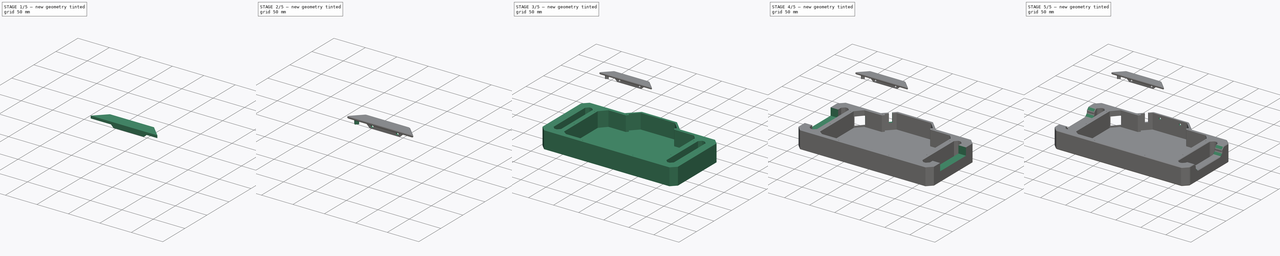
[diagram: build sequence overview — one tinted view per stage of 5, left to right]
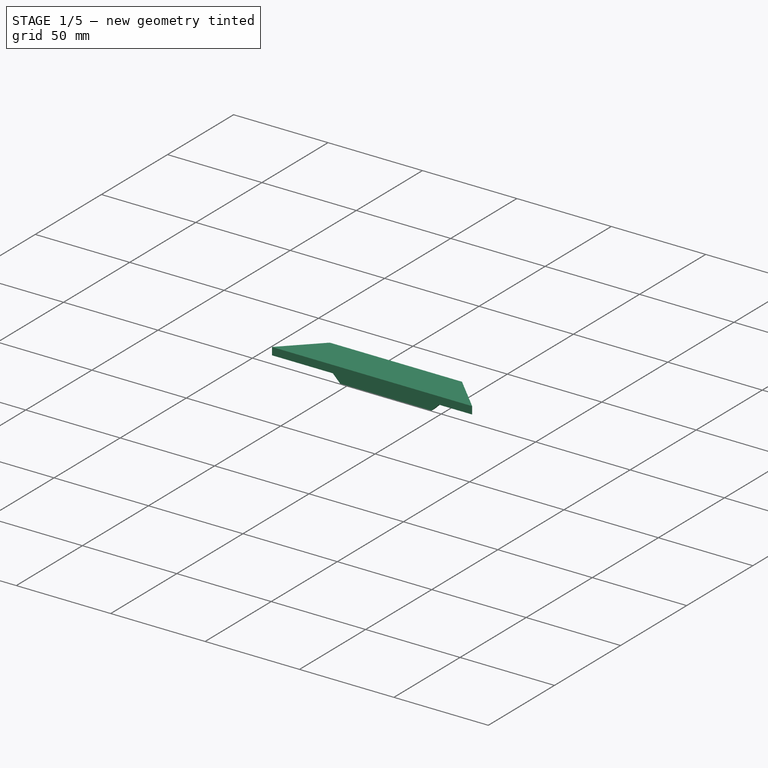
[diagram: stage 1 of 5 — iso view after this stage's code; geometry added in this stage tinted green]
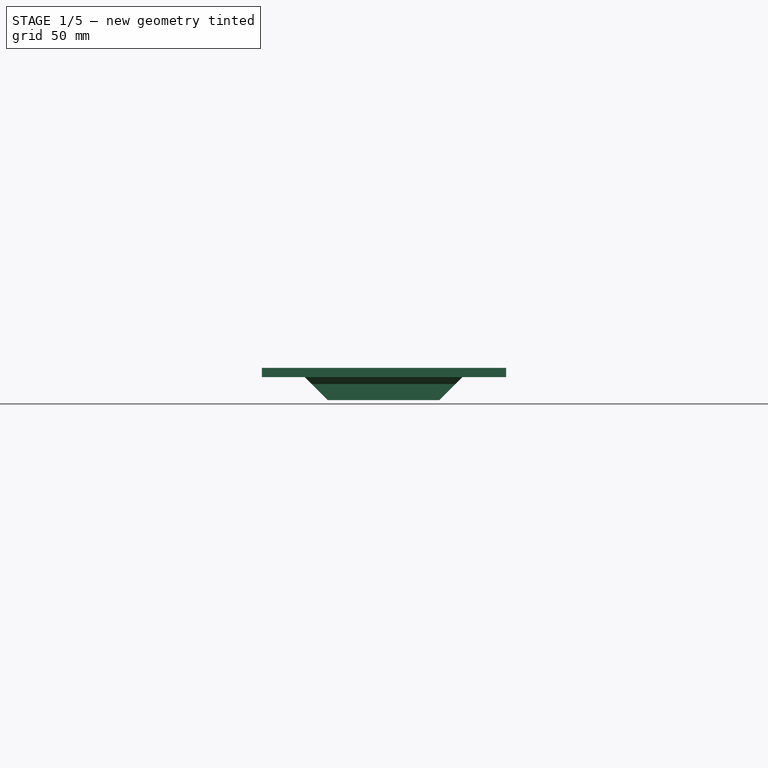
[diagram: stage 1 of 5 — front view after this stage's code; geometry added in this stage tinted green]
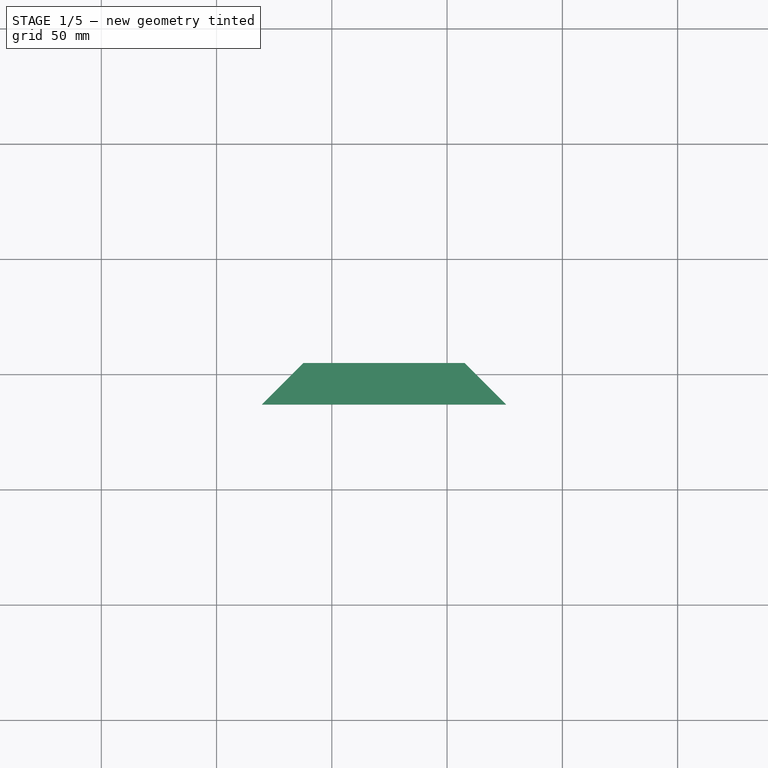
[diagram: stage 1 of 5 — top view after this stage's code; geometry added in this stage tinted green]
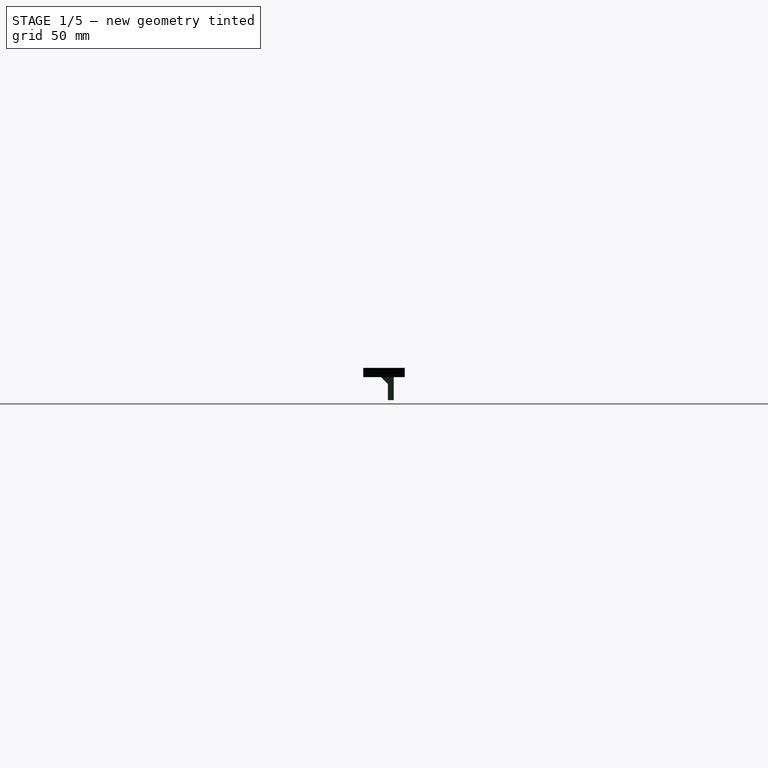
[diagram: stage 1 of 5 — right view after this stage's code; geometry added in this stage tinted green]
FCSTD DOCUMENT  (FreeCAD 0.19R)
Label: Screen_BackPanel
License: All rights reserved
LicenseURL: http://en.wikipedia.org/wiki/All_rights_reserved
objects: Sketcher::SketchObject×13, PartDesign::Pocket×9, PartDesign::Plane×8, PartDesign::Chamfer×7, PartDesign::Pad×4, PartDesign::Body×2, App::DocumentObjectGroup×1, PartDesign::ShapeBinder×1
note: 64 computed .brp shape members not serialized (recipe doc carries the construction recipe); baked Part::Feature solids carry a one-line shape summary decoded from their .brp

FEATURE [PartDesign::Plane] DatumPlane004
  AttachmentOffset = pos=(0,0,-170) rot=(0,0,1;0rad)
  Length = 332.392
  MapMode = 5
  Placement = pos=(0,170,3.77e-14) rot=(1,0,0;1.5708rad)
  ResizeMode = 0
  Support = -> [XZ_Plane]
  Width = 85.8528
FEATURE [PartDesign::ShapeBinder] CopyXY_Plane
  TraceSupport = false
FEATURE [PartDesign::Plane] DatumPlane005
  AttachmentOffset = pos=(0,0,34) rot=(0,0,1;0rad)
  Length = 138.799
  MapMode = 5
  Placement = pos=(0,0,34) rot=(0,0,1;0rad)
  ResizeMode = 0
  Support = -> [CopyXY_Plane]
  Width = 314.025
FEATURE [Sketcher::SketchObject] Sketch009
  FullyConstrained = false
  MapMode = 5
  Placement = pos=(0,0,34) rot=(0,0,1;0rad)
  Support = -> [DatumPlane005]
  sketch-geometry (4):
    g0: LineSegment StartX=-30.3678 StartY=236.811 StartZ=0 EndX=-12.3678 EndY=254.811 EndZ=0
    g1: LineSegment StartX=-12.3678 StartY=254.811 StartZ=0 EndX=57.6322 EndY=254.811 EndZ=0
    g2: LineSegment StartX=57.6322 StartY=254.811 StartZ=0 EndX=75.6322 EndY=236.811 EndZ=0
    g3: LineSegment StartX=75.6322 StartY=236.811 StartZ=0 EndX=-30.3678 EndY=236.811 EndZ=0
  constraints (10):
    c: Coincident(g0,g1)
    c: Coincident(g1,g2)
    c: Coincident(g2,g3)
    c: Coincident(g3,g0)
    c: Angle(g0,g2) = 1.5708
    c: Parallel(g1,g3)
    c: Horizontal(g1)
    c: DistanceX(g1,g1) = 70
    c: DistanceY(g2,g1) = 18
    c: Angle(g2) = -0.785398
FEATURE [Sketcher::SketchObject] Sketch010
  FullyConstrained = false
  MapMode = 5
  Placement = pos=(0,0,34) rot=(0,0,1;0rad)
  Support = -> [DatumPlane005]
  sketch-geometry (4):
    g0: LineSegment StartX=-19.2143 StartY=248.061 StartZ=0 EndX=-16.6308 EndY=245.478 EndZ=0
    g1: LineSegment StartX=-16.6308 StartY=245.478 StartZ=0 EndX=-20.7377 EndY=241.371 EndZ=0
    g2: LineSegment StartX=-20.7377 StartY=241.371 StartZ=0 EndX=-23.3212 EndY=243.954 EndZ=0
    g3: LineSegment StartX=-23.3212 StartY=243.954 StartZ=0 EndX=-19.2143 EndY=248.061 EndZ=0
  constraints (8):
    c: Coincident(g0,g1)
    c: Coincident(g1,g2)
    c: Coincident(g2,g3)
    c: Coincident(g3,g0)
    c: Parallel(g1,g3)
    c: Parallel(g0,g2)
    c: Angle(g3) = 0.785398
    c: Angle(g2) = 2.35619
FEATURE [Sketcher::SketchObject] Sketch012
  FullyConstrained = false
  MapMode = 5
  Placement = pos=(0,0,34) rot=(0,0,1;0rad)
  Support = -> [DatumPlane005]
  sketch-geometry (4):
    g0: LineSegment StartX=-11.7011 StartY=250.05 StartZ=0 EndX=56.6344 EndY=250.05 EndZ=0
    g1: LineSegment StartX=56.6344 StartY=250.05 StartZ=0 EndX=56.6344 EndY=247.469 EndZ=0
    g2: LineSegment StartX=56.6344 StartY=247.469 StartZ=0 EndX=-11.7011 EndY=247.469 EndZ=0
    g3: LineSegment StartX=-11.7011 StartY=247.469 StartZ=0 EndX=-11.7011 EndY=250.05 EndZ=0
  constraints (8):
    c: Coincident(g0,g1)
    c: Coincident(g1,g2)
    c: Coincident(g2,g3)
    c: Coincident(g3,g0)
    c: Horizontal(g0)
    c: Horizontal(g2)
    c: Vertical(g1)
    c: Vertical(g3)
FEATURE [PartDesign::Pad] Pad001
  Direction = (1,1,1)
  Length = 10
  Length2 = 100
  Placement = pos=(0,0,34) rot=(0,0,1;0rad)
  Profile = -> Sketch012
  Reversed = true
  Type = 0
FEATURE [PartDesign::Pad] Pad002
  BaseFeature = -> Pad001
  Direction = (1,1,1)
  Length = 4
  Length2 = 100
  Placement = pos=(0,0,34) rot=(0,0,1;0rad)
  Profile = -> Sketch009
  Type = 0
FEATURE [PartDesign::Chamfer] Chamfer001
  Angle = 45
  Base = -> Pad002 [Edge21,Edge24]
  BaseFeature = -> Pad002
  ChamferType = 0
  FlipDirection = false
  Placement = pos=(0,0,34) rot=(0,0,1;0rad)
  Size = 9.99
  Size2 = 1
  SupportTransform = false
FEATURE [PartDesign::Chamfer] Chamfer002
  Angle = 45
  Base = -> Chamfer001 [Edge17]
  BaseFeature = -> Chamfer001
  ChamferType = 0
  FlipDirection = false
  Placement = pos=(0,0,34) rot=(0,0,1;0rad)
  Size = 3
  Size2 = 1
  SupportTransform = false
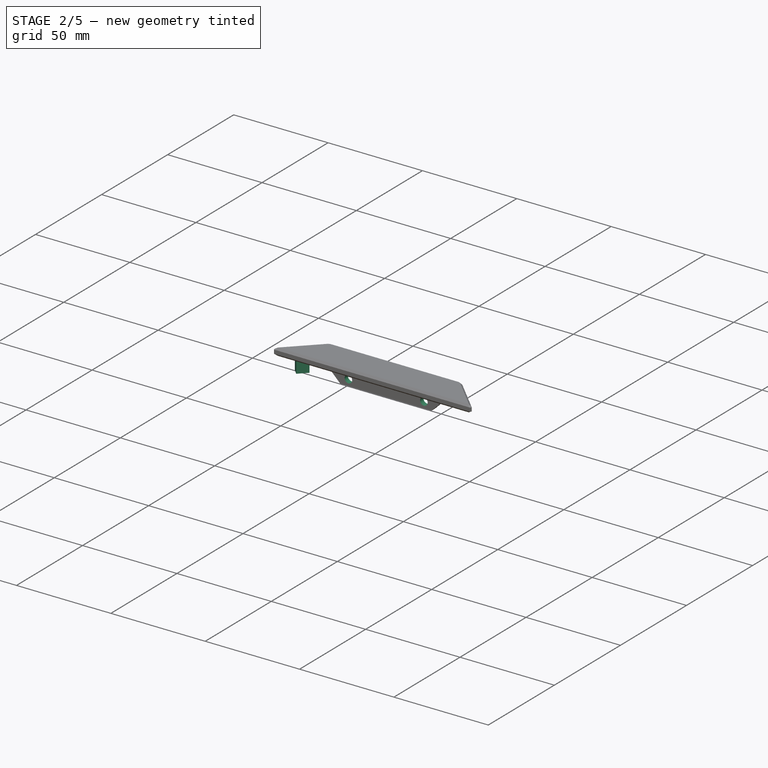
[diagram: stage 2 of 5 — iso view after this stage's code; geometry added in this stage tinted green]
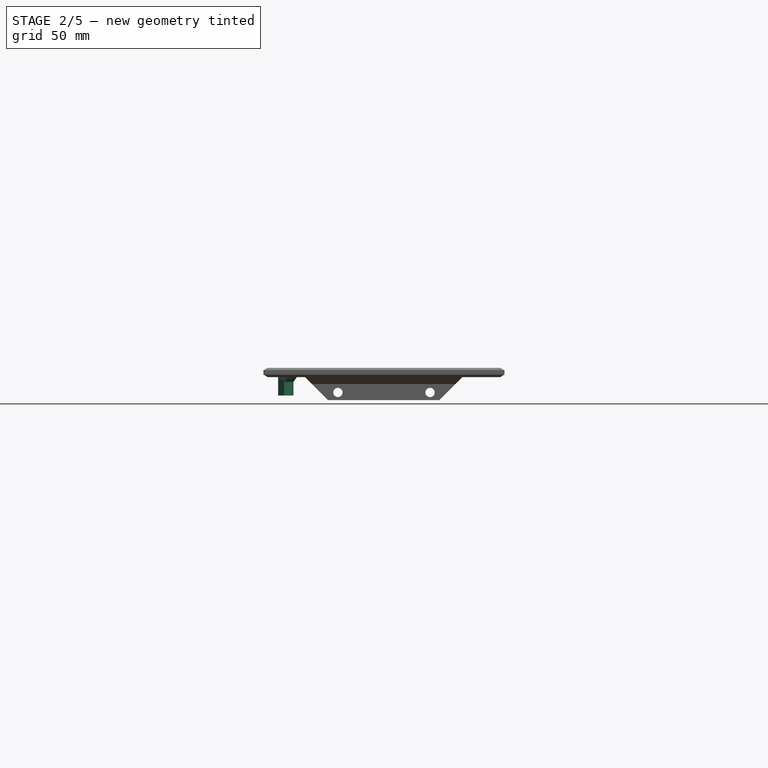
[diagram: stage 2 of 5 — front view after this stage's code; geometry added in this stage tinted green]
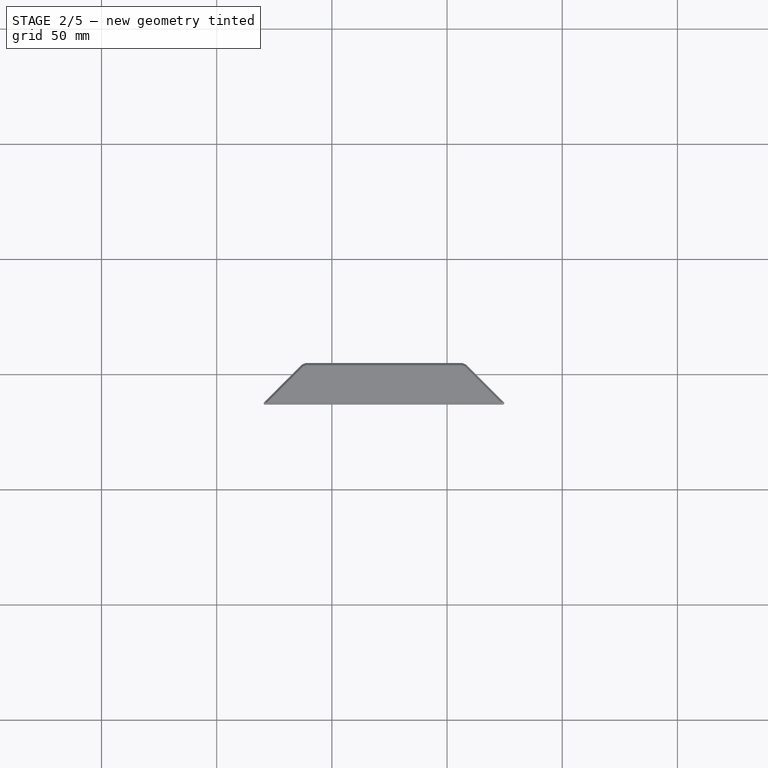
[diagram: stage 2 of 5 — top view after this stage's code; geometry added in this stage tinted green]
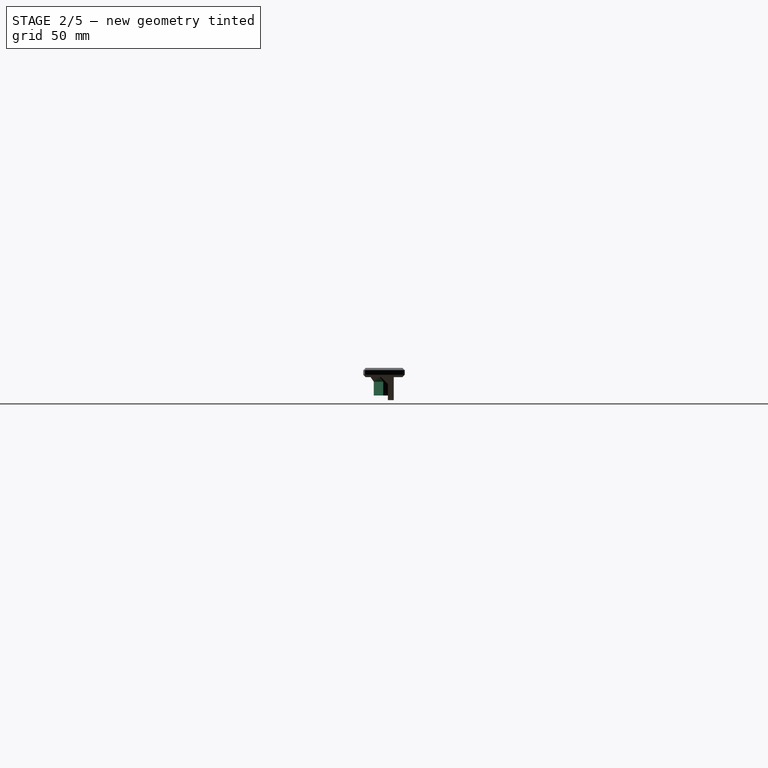
[diagram: stage 2 of 5 — right view after this stage's code; geometry added in this stage tinted green]
FEATURE [PartDesign::Plane] DatumPlane006
  Length = 138.799
  ResizeMode = 0
  Width = 314.025
FEATURE [PartDesign::Plane] DatumPlane007
  AttachmentOffset = pos=(0,0,-230) rot=(0,0,1;0rad)
  Length = 120.82
  MapMode = 2
  Placement = pos=(0,230,5.11e-14) rot=(1,0,0;1.5708rad)
  ResizeMode = 0
  Support = -> [XZ_Plane001]
  Width = 79.2344
FEATURE [Sketcher::SketchObject] Sketch013
  FullyConstrained = false
  MapMode = 5
  Placement = pos=(0,230,5.11e-14) rot=(1,0,0;1.5708rad)
  Support = -> [DatumPlane007]
  sketch-geometry (2):
    g0: Circle CenterX=2.61427 CenterY=27.3185 CenterZ=0 NormalX=0 NormalY=0 NormalZ=1 AngleXU=0 Radius=2
    g1: Circle CenterX=42.6143 CenterY=27.3185 CenterZ=0 NormalX=0 NormalY=0 NormalZ=1 AngleXU=0 Radius=2
  constraints (4):
    c: DistanceX(g0,g1) = 40
    c: DistanceY(g0,g1) = 0
    c: Diameter(g0) = 4
    c: Diameter(g1) = 4
FEATURE [PartDesign::Pocket] Pocket007
  BaseFeature = -> Chamfer002
  Length = 50
  Length2 = 100
  Placement = pos=(0,0,34) rot=(0,0,1;0rad)
  Profile = -> Sketch013
  Type = 0
FEATURE [PartDesign::Pad] Pad003
  BaseFeature = -> Pocket007
  Direction = (1,1,1)
  Length = 8
  Length2 = 100
  Placement = pos=(0,0,34) rot=(0,0,1;0rad)
  Profile = -> Sketch010
  Reversed = true
  Type = 0
FEATURE [PartDesign::Chamfer] Chamfer004
  Angle = 45
  Base = -> Pad003 [Edge24]
  BaseFeature = -> Pad003
  ChamferType = 0
  FlipDirection = false
  Placement = pos=(0,0,34) rot=(0,0,1;0rad)
  Size = 2
  Size2 = 1
  SupportTransform = false
FEATURE [PartDesign::Body] Body
  Group = -> [Sketch,Pad,DatumPlane,Sketch002,Pocket,Sketch003,Pocket001,DatumPlane001,Sketch004,Pocket002,DatumPlane002,Sketch005,Pocket003,Sketch006,Pocket004,DatumPlane003,Sketch007,Pocket005,Sketch008,Pocket006,Chamfer,DatumPlane004,Sketch014,Pocket008,Chamfer003,Chamfer005]
  Origin = -> Origin
  Placement = pos=(58,68,0) rot=(0,0,1;0rad)
  Tip = -> Chamfer005
FEATURE [PartDesign::Chamfer] Chamfer006
  Angle = 45
  Base = -> Chamfer004 [Face17,Edge22,Edge23,Edge30,Edge32,Edge10,Edge9,Edge4,Edge6,Edge8]
  BaseFeature = -> Chamfer004
  ChamferType = 0
  FlipDirection = false
  Placement = pos=(0,0,34) rot=(0,0,1;0rad)
  Size = 1
  Size2 = 1
  SupportTransform = false
FEATURE [PartDesign::Body] Body001
  Group = -> [DatumPlane005,CopyXY_Plane,Sketch009,Sketch010,Sketch012,Pad001,Pad002,Chamfer001,Chamfer002,DatumPlane006,DatumPlane007,Sketch013,Pocket007,Pad003,Chamfer004,Chamfer006]
  Origin = -> Origin001
  Placement = pos=(181,-29,0) rot=(0,0,1;0rad)
  Tip = -> Chamfer006
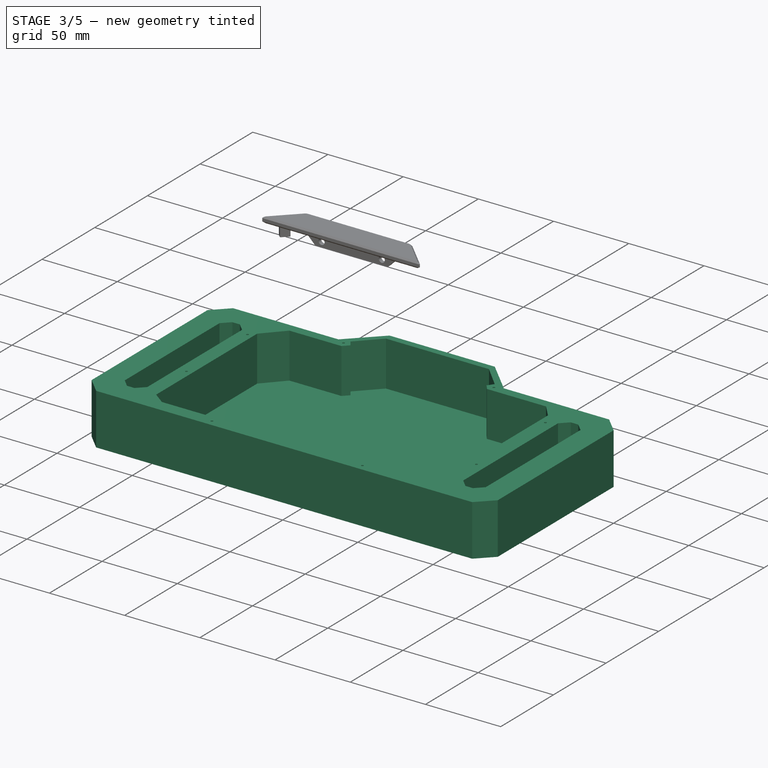
[diagram: stage 3 of 5 — iso view after this stage's code; geometry added in this stage tinted green]
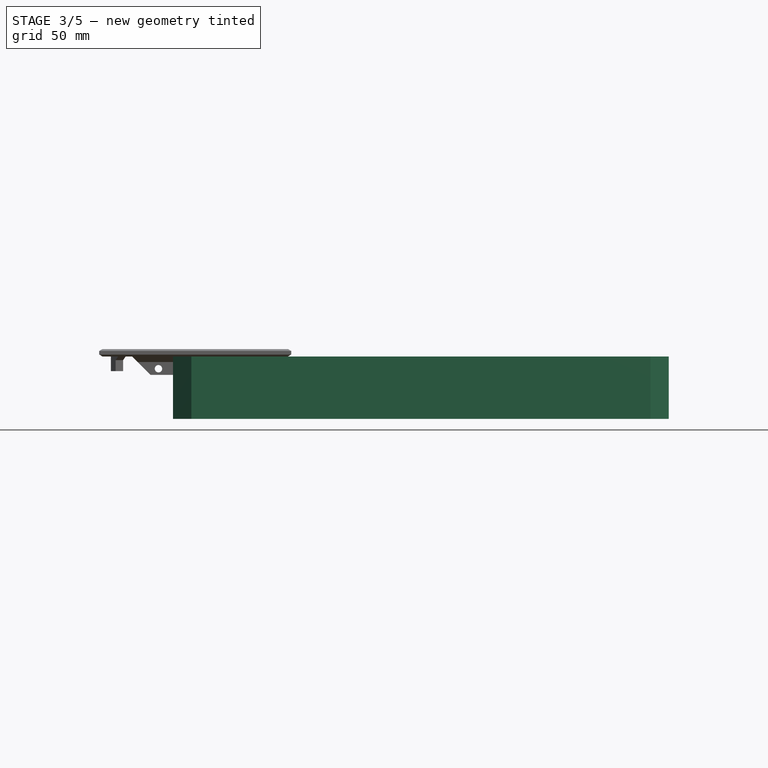
[diagram: stage 3 of 5 — front view after this stage's code; geometry added in this stage tinted green]
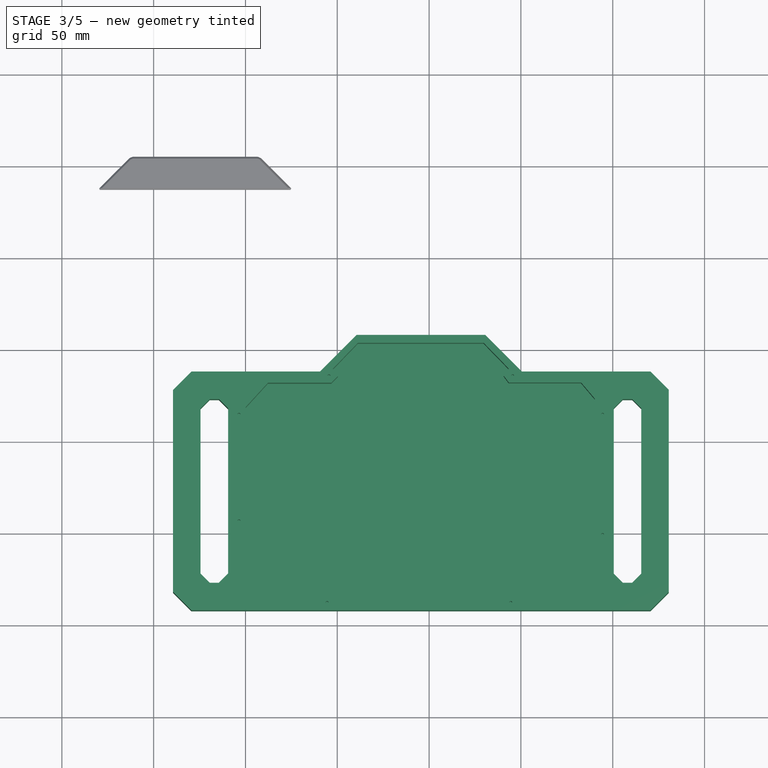
[diagram: stage 3 of 5 — top view after this stage's code; geometry added in this stage tinted green]
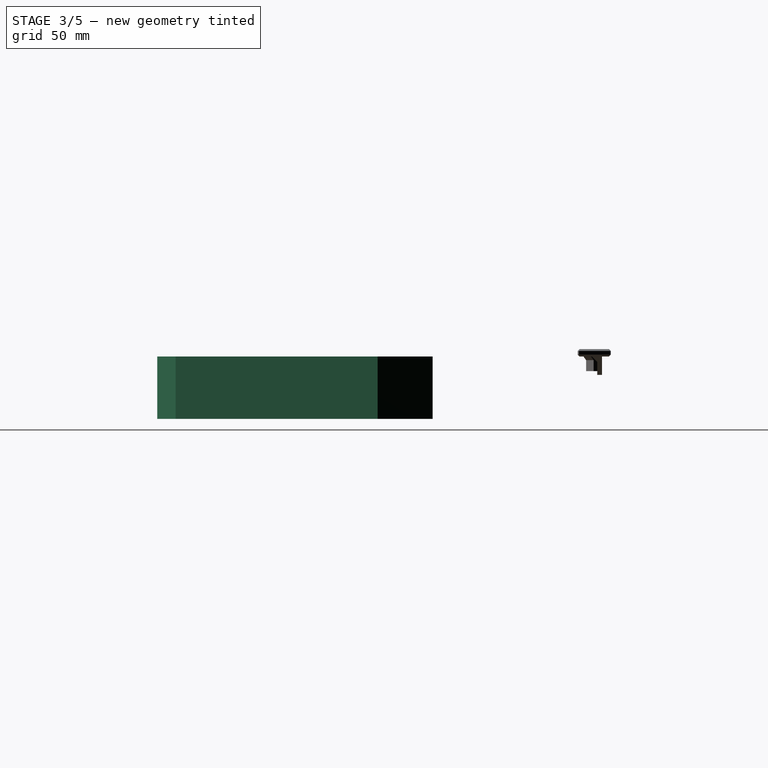
[diagram: stage 3 of 5 — right view after this stage's code; geometry added in this stage tinted green]
FEATURE [Sketcher::SketchObject] Sketch
  FullyConstrained = false
  sketch-geometry (28):
    g0: LineSegment StartX=110.539 StartY=157.839 StartZ=0 EndX=180.539 EndY=157.839 EndZ=0
    g1: LineSegment StartX=280.539 StartY=127.839 StartZ=0 EndX=280.539 EndY=17.8389 EndZ=0
    g2: LineSegment StartX=10.5388 StartY=127.839 StartZ=0 EndX=10.5388 EndY=17.8389 EndZ=0
    g3: LineSegment StartX=20.5388 StartY=7.83889 StartZ=0 EndX=270.539 EndY=7.83889 EndZ=0
    g4: LineSegment StartX=20.5388 StartY=137.839 StartZ=0 EndX=90.5388 EndY=137.839 EndZ=0
    g5: LineSegment StartX=200.539 StartY=137.839 StartZ=0 EndX=270.539 EndY=137.839 EndZ=0
    g6: LineSegment StartX=10.5388 StartY=127.839 StartZ=0 EndX=20.5388 EndY=137.839 EndZ=0
    g7: LineSegment StartX=90.5388 StartY=137.839 StartZ=0 EndX=110.539 EndY=157.839 EndZ=0
    g8: LineSegment StartX=180.539 StartY=157.839 StartZ=0 EndX=200.539 EndY=137.839 EndZ=0
    g9: LineSegment StartX=270.539 StartY=137.839 StartZ=0 EndX=280.539 EndY=127.839 EndZ=0
    g10: LineSegment StartX=280.539 StartY=17.8389 StartZ=0 EndX=270.539 EndY=7.83889 EndZ=0
    g11: LineSegment StartX=10.5388 StartY=17.8389 StartZ=0 EndX=20.5388 EndY=7.83889 EndZ=0
    g12: LineSegment StartX=25.5388 StartY=117.839 StartZ=0 EndX=25.5388 EndY=27.8389 EndZ=0
    g13: LineSegment StartX=40.5388 StartY=27.8389 StartZ=0 EndX=40.5388 EndY=117.839 EndZ=0
    g14: LineSegment StartX=30.5388 StartY=122.839 StartZ=0 EndX=35.5388 EndY=122.839 EndZ=0
    g15: LineSegment StartX=30.5388 StartY=22.8389 StartZ=0 EndX=35.5388 EndY=22.8389 EndZ=0
    g16: LineSegment StartX=25.5388 StartY=117.839 StartZ=0 EndX=30.5388 EndY=122.839 EndZ=0
    g17: LineSegment StartX=35.5388 StartY=122.839 StartZ=0 EndX=40.5388 EndY=117.839 EndZ=0
    g18: LineSegment StartX=25.5388 StartY=27.8389 StartZ=0 EndX=30.5388 EndY=22.8389 EndZ=0
    g19: LineSegment StartX=35.5388 StartY=22.8389 StartZ=0 EndX=40.5388 EndY=27.8389 EndZ=0
    g20: LineSegment StartX=250.539 StartY=117.839 StartZ=0 EndX=250.539 EndY=27.8389 EndZ=0
    g21: LineSegment StartX=250.539 StartY=27.8389 StartZ=0 EndX=255.539 EndY=22.8389 EndZ=0
    g22: LineSegment StartX=255.539 StartY=22.8389 StartZ=0 EndX=260.539 EndY=22.8389 EndZ=0
    g23: LineSegment StartX=260.539 StartY=22.8389 StartZ=0 EndX=265.539 EndY=27.8389 EndZ=0
    g24: LineSegment StartX=265.539 StartY=27.8389 StartZ=0 EndX=265.539 EndY=117.839 EndZ=0
    g25: LineSegment StartX=265.539 StartY=117.839 StartZ=0 EndX=260.539 EndY=122.839 EndZ=0
    g26: LineSegment StartX=260.539 StartY=122.839 StartZ=0 EndX=255.539 EndY=122.839 EndZ=0
    g27: LineSegment StartX=255.539 StartY=122.839 StartZ=0 EndX=250.539 EndY=117.839 EndZ=0
  constraints (82):
    c: Horizontal(g0)
    c: Vertical(g1)
    c: Vertical(g2)
    c: Horizontal(g3)
    c: Distance(g2) = 110
    c: Equal(g1,g2)
    c: Distance(g3) = 250
    c: Distance(g0) = 70
    c: DistanceY(g3,g0) = 150
    c: DistanceY(g3,g1) = 10
    c: DistanceX(g3,g1) = 10
    c: DistanceY(g3,g2) = 10
    c: DistanceX(g2,g3) = 10
    c: Horizontal(g4)
    c: Horizontal(g5)
    c: Distance(g4) = 70
    c: Equal(g5,g4)
    c: DistanceY(g2,g4) = 10
    c: DistanceX(g2,g4) = 10
    c: DistanceY(g1,g5) = 10
    c: DistanceX(g5,g1) = 10
    c: DistanceX(g4,g0) = 20
    c: Coincident(g6,g2)
    c: Coincident(g6,g4)
    c: Coincident(g7,g4)
    c: Coincident(g7,g0)
    c: Coincident(g8,g0)
    c: Coincident(g8,g5)
    c: Coincident(g9,g5)
    c: Coincident(g9,g1)
    c: Coincident(g10,g1)
    c: Coincident(g10,g3)
    c: Coincident(g11,g2)
    c: Coincident(g11,g3)
    c: Distance(g12) = 90
    c: Equal(g13,g12)
    c: Vertical(g12)
    c: Vertical(g13)
    c: Equal(g15,g14)
    c: Distance(g14) = 5
    c: Horizontal(g14)
    c: Horizontal(g15)
    c: DistanceY(g3,g15) = 15
    c: DistanceX(g12,g15) = 5
    c: DistanceX(g15,g13) = 5
    c: DistanceY(g15,g13) = 5
    c: DistanceY(g15,g12) = 5
    c: DistanceY(g14,g4) = 15
    c: DistanceX(g12,g14) = 5
    c: DistanceX(g2,g12) = 15
    c: Coincident(g16,g14)
    c: Coincident(g16,g12)
    c: Coincident(g14,g17)
    c: Coincident(g17,g13)
    c: Coincident(g19,g13)
    c: Coincident(g19,g15)
    c: Coincident(g18,g12)
    c: Coincident(g18,g15)
    c: Coincident(g20,g21)
    c: Coincident(g21,g22)
    c: Coincident(g22,g23)
    c: Coincident(g23,g24)
    c: Coincident(g24,g25)
    c: Coincident(g25,g26)
    c: Coincident(g26,g27)
    c: Coincident(g27,g20)
    c: Horizontal(g26)
    c: Distance(g26) = 5
    c: Equal(g26,g22)
    c: Equal(g20,g24)
    c: Distance(g20) = 90
    c: Vertical(g20)
    c: Vertical(g24)
    c: Horizontal(g22)
    c: DistanceX(g20,g23) = 15
    c: DistanceX(g20,g21) = 5
    c: DistanceY(g21,g20) = 5
    c: DistanceY(g22,g23) = 5
    c: DistanceY(g20,g26) = 5
    c: DistanceX(g20,g26) = 5
    c: DistanceY(g3,g22) = 15
    c: DistanceX(g24,g1) = 15
FEATURE [PartDesign::Pad] Pad
  Direction = (1,1,1)
  Length = 34
  Length2 = 100
  Profile = -> Sketch
  Type = 0
FEATURE [App::DocumentObjectGroup] Group
FEATURE [PartDesign::Plane] DatumPlane
  AttachmentOffset = pos=(0,0,34) rot=(0,0,1;0rad)
  Length = 352.81
  MapMode = 5
  Placement = pos=(0,0,34) rot=(0,0,1;0rad)
  ResizeMode = 0
  Support = -> [XY_Plane]
  Width = 230.11
  expr: .AttachmentOffset.Base.z = Pad.Length
FEATURE [Sketcher::SketchObject] Sketch002
  FullyConstrained = false
  MapMode = 5
  Placement = pos=(0,0,34) rot=(0,0,1;0rad)
  Support = -> [DatumPlane]
  sketch-geometry (8):
    g0: Circle CenterX=95.458 CenterY=135.613 CenterZ=0 NormalX=0 NormalY=0 NormalZ=1 AngleXU=0 Radius=0.75
    g1: Circle CenterX=195.458 CenterY=135.613 CenterZ=0 NormalX=0 NormalY=0 NormalZ=1 AngleXU=0 Radius=0.75
    g2: Circle CenterX=244.458 CenterY=114.613 CenterZ=0 NormalX=0 NormalY=0 NormalZ=1 AngleXU=0 Radius=0.75
    g3: Circle CenterX=244.458 CenterY=49.1125 CenterZ=0 NormalX=0 NormalY=0 NormalZ=1 AngleXU=0 Radius=0.75
    g4: Circle CenterX=194.458 CenterY=12.1125 CenterZ=0 NormalX=0 NormalY=0 NormalZ=1 AngleXU=0 Radius=0.75
    g5: Circle CenterX=94.458 CenterY=12.1125 CenterZ=0 NormalX=0 NormalY=0 NormalZ=1 AngleXU=0 Radius=0.75
    g6: Circle CenterX=46.458 CenterY=56.6125 CenterZ=0 NormalX=0 NormalY=0 NormalZ=1 AngleXU=0 Radius=0.75
    g7: Circle CenterX=46.458 CenterY=114.613 CenterZ=0 NormalX=0 NormalY=0 NormalZ=1 AngleXU=0 Radius=0.75
  constraints (22):
    c: Equal(g0,g1)
    c: Equal(g1,g2)
    c: Equal(g2,g3)
    c: Equal(g3,g4)
    c: Equal(g4,g5)
    c: Equal(g5,g6)
    c: Equal(g6,g7)
    c: Diameter(g0) = 1.5
    c: DistanceX(g0,g1) = 100
    c: DistanceX(g5,g4) = 100
    c: DistanceY(g6,g7) = 58
    c: DistanceY(g3,g2) = 65.5
    c: DistanceY(g5,g4) = 0
    c: DistanceX(g7,g6) = 0
    c: DistanceY(g1,g0) = 0
    c: DistanceX(g2,g3) = 0
    c: DistanceX(g4,g3) = 50
    c: DistanceY(g4,g3) = 37
    c: DistanceX(g7,g2) = 198
    c: DistanceY(g7,g2) = 0
    c: DistanceX(g7,g0) = 49
    c: DistanceY(g7,g0) = 21
FEATURE [PartDesign::Pocket] Pocket
  BaseFeature = -> Pad
  Length = 20
  Length2 = 100
  Profile = -> Sketch002
  Type = 0
FEATURE [Sketcher::SketchObject] Sketch003
  FullyConstrained = false
  MapMode = 5
  Placement = pos=(0,0,34) rot=(0,0,1;0rad)
  Support = -> [DatumPlane]
  sketch-geometry (16):
    g0: LineSegment StartX=50.0988 StartY=118.467 StartZ=0 EndX=50.0988 EndY=22.5845 EndZ=0
    g1: LineSegment StartX=50.0988 StartY=22.5845 StartZ=0 EndX=58.1009 EndY=16.6192 EndZ=0
    g2: LineSegment StartX=58.1009 StartY=16.6192 StartZ=0 EndX=231.76 EndY=16.6192 EndZ=0
    g3: LineSegment StartX=231.76 StartY=16.6192 StartZ=0 EndX=240.213 EndY=23.2751 EndZ=0
    g4: LineSegment StartX=240.213 StartY=23.2751 StartZ=0 EndX=240.213 EndY=123.096 EndZ=0
    g5: LineSegment StartX=240.213 StartY=123.096 StartZ=0 EndX=232.766 EndY=131.897 EndZ=0
    g6: LineSegment StartX=232.766 StartY=131.897 StartZ=0 EndX=193.356 EndY=131.897 EndZ=0
    g7: LineSegment StartX=193.356 StartY=131.897 StartZ=0 EndX=190.64 EndY=135.563 EndZ=0
    g8: LineSegment StartX=190.64 StartY=135.563 StartZ=0 EndX=193.347 EndY=139.461 EndZ=0
    g9: LineSegment StartX=193.347 StartY=139.461 StartZ=0 EndX=179.703 EndY=153.49 EndZ=0
    g10: LineSegment StartX=179.703 StartY=153.49 StartZ=0 EndX=111.218 EndY=153.49 EndZ=0
    g11: LineSegment StartX=111.218 StartY=153.49 StartZ=0 EndX=97.5908 EndY=139.348 EndZ=0
    g12: LineSegment StartX=97.5908 StartY=139.348 StartZ=0 EndX=100.326 EndY=135.336 EndZ=0
    g13: LineSegment StartX=100.326 StartY=135.336 StartZ=0 EndX=96.7908 EndY=131.749 EndZ=0
    g14: LineSegment StartX=96.7908 StartY=131.749 StartZ=0 EndX=62.2474 EndY=131.749 EndZ=0
    g15: LineSegment StartX=62.2474 StartY=131.749 StartZ=0 EndX=50.0988 EndY=118.467 EndZ=0
  constraints (23):
    c: Coincident(g0,g1)
    c: Coincident(g1,g2)
    c: Coincident(g2,g3)
    c: Coincident(g3,g4)
    c: Coincident(g4,g5)
    c: Coincident(g5,g6)
    c: Coincident(g6,g7)
    c: Coincident(g7,g8)
    c: Coincident(g8,g9)
    c: Coincident(g9,g10)
    c: Coincident(g10,g11)
    c: Coincident(g11,g12)
    c: Coincident(g12,g13)
    c: Coincident(g13,g14)
    c: Coincident(g14,g15)
    c: Coincident(g15,g0)
    c: Distance(g15) = 18
    c: Vertical(g0)
    c: Horizontal(g14)
    c: Horizontal(g6)
    c: Horizontal(g10)
    c: Vertical(g4)
    c: Horizontal(g2)
FEATURE [PartDesign::Pocket] Pocket001
  BaseFeature = -> Pocket
  Length = 30
  Length2 = 100
  Profile = -> Sketch003
  Type = 0
FEATURE [PartDesign::Plane] DatumPlane001
  AttachmentOffset = pos=(0,0,-6.5) rot=(0,0,1;0rad)
  Length = 352.81
  MapMode = 5
  Placement = pos=(0,0,27.5) rot=(0,0,1;0rad)
  ResizeMode = 0
  Support = -> [DatumPlane]
  Width = 230.11
FEATURE [Sketcher::SketchObject] Sketch004
  FullyConstrained = false
  MapMode = 5
  Placement = pos=(0,0,27.5) rot=(0,0,1;0rad)
  Support = -> [DatumPlane001]
  sketch-geometry (3):
    g0: LineSegment StartX=27.0152 StartY=138.576 StartZ=0 EndX=47.7519 EndY=118.068 EndZ=0
    g1: LineSegment StartX=47.7519 StartY=118.068 StartZ=0 EndX=66.9207 EndY=138.562 EndZ=0
    g2: LineSegment StartX=66.9207 StartY=138.562 StartZ=0 EndX=27.0152 EndY=138.576 EndZ=0
  constraints (3):
    c: Coincident(g0,g1)
    c: Coincident(g1,g2)
    c: Coincident(g2,g0)
FEATURE [PartDesign::Pocket] Pocket002
  BaseFeature = -> Pocket001
  Length = 30
  Length2 = 100
  Profile = -> Sketch004
  Type = 0
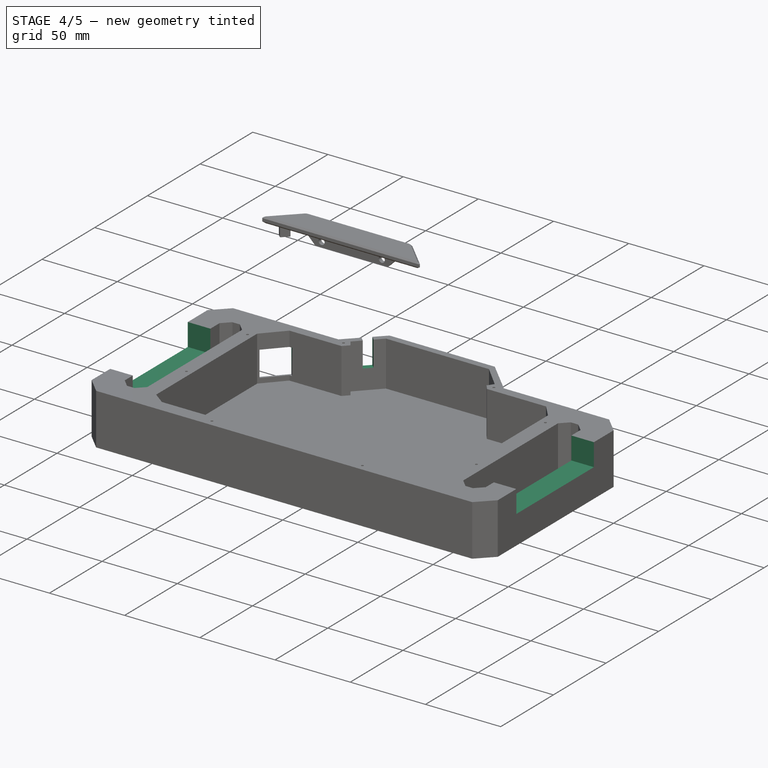
[diagram: stage 4 of 5 — iso view after this stage's code; geometry added in this stage tinted green]
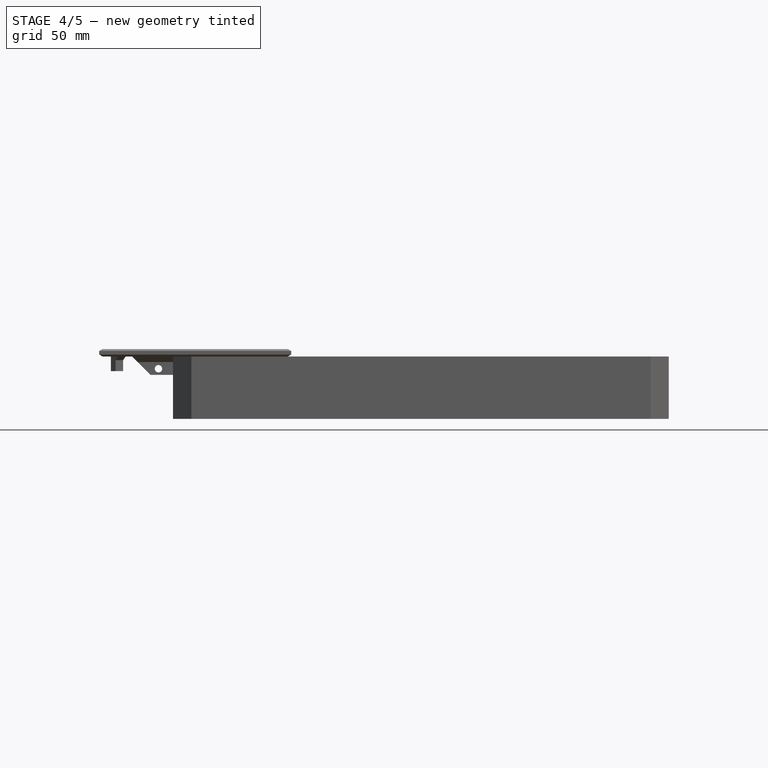
[diagram: stage 4 of 5 — front view after this stage's code; geometry added in this stage tinted green]
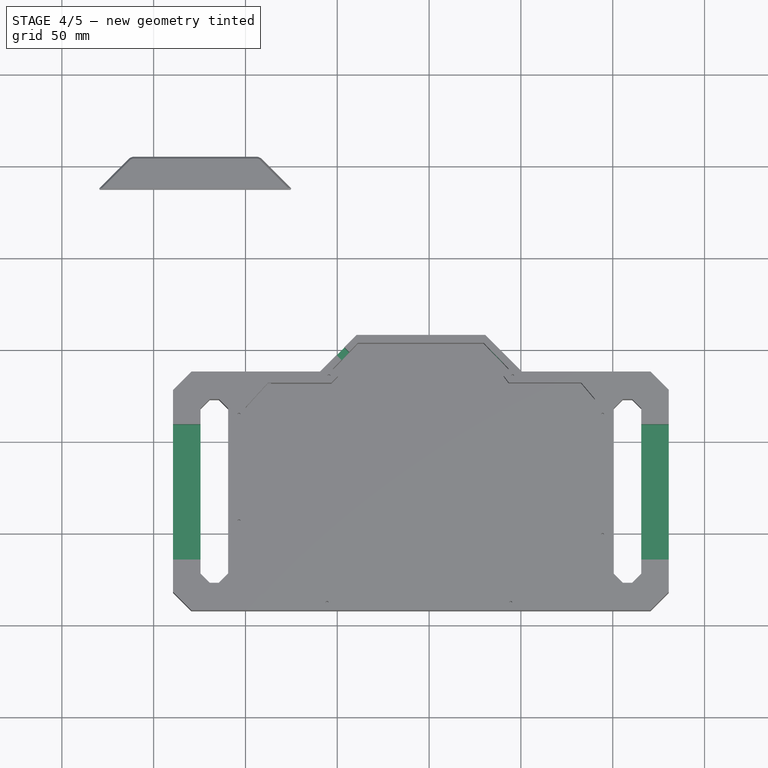
[diagram: stage 4 of 5 — top view after this stage's code; geometry added in this stage tinted green]
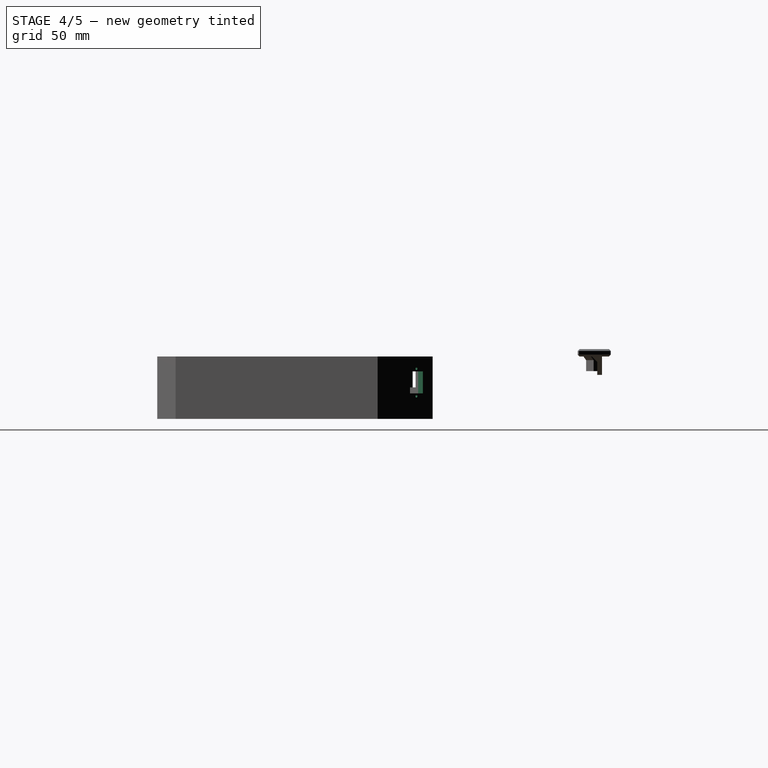
[diagram: stage 4 of 5 — right view after this stage's code; geometry added in this stage tinted green]
FEATURE [PartDesign::Plane] DatumPlane002
  AttachmentOffset = pos=(20,40,0) rot=(0.862856,0.357407,0.357407;1.71777rad)
  Length = 373.883
  MapMode = 2
  Placement = pos=(20,40,0) rot=(0.862856,0.357407,0.357407;1.71777rad)
  ResizeMode = 0
  Support = -> [Pocket002]
  Width = 87.548
FEATURE [Sketcher::SketchObject] Sketch005
  FullyConstrained = false
  MapMode = 5
  Placement = pos=(20,40,0) rot=(0.862856,0.357407,0.357407;1.71777rad)
  Support = -> [DatumPlane002]
  sketch-geometry (4):
    g0: LineSegment StartX=96.0821 StartY=24.214 StartZ=0 EndX=96.0821 EndY=7.214 EndZ=0
    g1: LineSegment StartX=96.0821 StartY=7.214 StartZ=0 EndX=78.0821 EndY=7.214 EndZ=0
    g2: LineSegment StartX=78.0821 StartY=7.214 StartZ=0 EndX=78.0821 EndY=24.214 EndZ=0
    g3: LineSegment StartX=78.0821 StartY=24.214 StartZ=0 EndX=96.0821 EndY=24.214 EndZ=0
  constraints (10):
    c: Coincident(g0,g1)
    c: Coincident(g1,g2)
    c: Coincident(g2,g3)
    c: Coincident(g0,g3)
    c: Vertical(g0)
    c: Horizontal(g3)
    c: Vertical(g2)
    c: Equal(g0,g2)
    c: Distance(g3) = 18
    c: Distance(g2) = 17
FEATURE [PartDesign::Pocket] Pocket003
  BaseFeature = -> Pocket002
  Length = 50
  Length2 = 100
  Profile = -> Sketch005
  Type = 0
FEATURE [Sketcher::SketchObject] Sketch006
  FullyConstrained = false
  MapMode = 5
  Placement = pos=(20,40,0) rot=(0.862856,0.357407,0.357407;1.71777rad)
  Support = -> [DatumPlane002]
  sketch-geometry (4):
    g0: LineSegment StartX=131.863 StartY=37.8398 StartZ=0 EndX=131.863 EndY=17.1403 EndZ=0
    g1: LineSegment StartX=131.863 StartY=17.1403 StartZ=0 EndX=137.863 EndY=17.1403 EndZ=0
    g2: LineSegment StartX=137.863 StartY=17.1403 StartZ=0 EndX=137.863 EndY=37.8398 EndZ=0
    g3: LineSegment StartX=137.863 StartY=37.8398 StartZ=0 EndX=131.863 EndY=37.8398 EndZ=0
  constraints (9):
    c: Coincident(g0,g1)
    c: Coincident(g1,g2)
    c: Coincident(g2,g3)
    c: Coincident(g3,g0)
    c: Vertical(g0)
    c: Vertical(g2)
    c: Horizontal(g3)
    c: Equal(g0,g2)
    c: Distance(g3) = 6
FEATURE [PartDesign::Pocket] Pocket004
  BaseFeature = -> Pocket003
  Length = 20
  Length2 = 100
  Profile = -> Sketch006
  Type = 0
FEATURE [PartDesign::Plane] DatumPlane003
  AttachmentOffset = pos=(0,320,0) rot=(0.862856,-0.357407,-0.357407;1.71777rad)
  Length = 474.632
  MapMode = 2
  Placement = pos=(0,320,0) rot=(0.862856,-0.357407,-0.357407;1.71777rad)
  ResizeMode = 0
  Support = -> [Pad]
  Width = 91.3092
FEATURE [Sketcher::SketchObject] Sketch007
  FullyConstrained = false
  MapMode = 5
  Placement = pos=(0,320,0) rot=(0.862856,-0.357407,-0.357407;1.71777rad)
  Support = -> [DatumPlane003]
  sketch-geometry (6):
    g0: Circle CenterX=254.836 CenterY=27.4023 CenterZ=0 NormalX=0 NormalY=0 NormalZ=1 AngleXU=0 Radius=0.75
    g1: Circle CenterX=254.836 CenterY=12.4023 CenterZ=0 NormalX=0 NormalY=0 NormalZ=1 AngleXU=0 Radius=0.75
    g2: LineSegment StartX=249.836 StartY=25.9023 StartZ=0 EndX=259.836 EndY=25.9023 EndZ=0
    g3: LineSegment StartX=259.836 StartY=25.9023 StartZ=0 EndX=259.836 EndY=13.9023 EndZ=0
    g4: LineSegment StartX=259.836 StartY=13.9023 StartZ=0 EndX=249.836 EndY=13.9023 EndZ=0
    g5: LineSegment StartX=249.836 StartY=13.9023 StartZ=0 EndX=249.836 EndY=25.9023 EndZ=0
  constraints (16):
    c: Coincident(g2,g3)
    c: Coincident(g3,g4)
    c: Coincident(g4,g5)
    c: Coincident(g5,g2)
    c: Horizontal(g2)
    c: Horizontal(g4)
    c: Vertical(g3)
    c: Vertical(g5)
    c: Distance(g2) = 10
    c: Distance(g3) = 12
    c: Diameter(g1) = 1.5
    c: Diameter(g0) = 1.5
    c: DistanceX(g1,g3) = 5
    c: DistanceY(g1,g3) = 1.5
    c: DistanceX(g0,g2) = 5
    c: DistanceY(g2,g0) = 1.5
FEATURE [PartDesign::Pocket] Pocket005
  BaseFeature = -> Pocket004
  Length = 20
  Length2 = 100
  Profile = -> Sketch007
  Type = 0
FEATURE [Sketcher::SketchObject] Sketch008
  FullyConstrained = false
  MapMode = 5
  Placement = pos=(0,0,34) rot=(0,0,1;0rad)
  Support = -> [DatumPlane]
  sketch-geometry (8):
    g0: LineSegment StartX=8.92107 StartY=109.133 StartZ=0 EndX=27.941 EndY=109.133 EndZ=0
    g1: LineSegment StartX=27.941 StartY=109.133 StartZ=0 EndX=27.941 EndY=35.4869 EndZ=0
    g2: LineSegment StartX=27.941 StartY=35.4869 StartZ=0 EndX=8.92107 EndY=35.4869 EndZ=0
    g3: LineSegment StartX=8.92107 StartY=35.4869 StartZ=0 EndX=8.92107 EndY=109.133 EndZ=0
    g4: LineSegment StartX=262.419 StartY=109.133 StartZ=0 EndX=285.16 EndY=109.133 EndZ=0
    g5: LineSegment StartX=285.16 StartY=109.133 StartZ=0 EndX=285.16 EndY=35.4869 EndZ=0
    g6: LineSegment StartX=285.16 StartY=35.4869 StartZ=0 EndX=262.419 EndY=35.4869 EndZ=0
    g7: LineSegment StartX=262.419 StartY=35.4869 StartZ=0 EndX=262.419 EndY=109.133 EndZ=0
  constraints (18):
    c: Coincident(g0,g1)
    c: Coincident(g1,g2)
    c: Coincident(g2,g3)
    c: Coincident(g3,g0)
    c: Horizontal(g0)
    c: Horizontal(g2)
    c: Vertical(g1)
    c: Vertical(g3)
    c: Coincident(g4,g5)
    c: Coincident(g5,g6)
    c: Coincident(g6,g7)
    c: Coincident(g7,g4)
    c: Horizontal(g4)
    c: Horizontal(g6)
    c: Vertical(g5)
    c: Vertical(g7)
    c: DistanceY(g4,g0) = 0
    c: DistanceY(g6,g1) = 0
FEATURE [PartDesign::Pocket] Pocket006
  BaseFeature = -> Pocket005
  Length = 15
  Length2 = 100
  Profile = -> Sketch008
  Type = 0
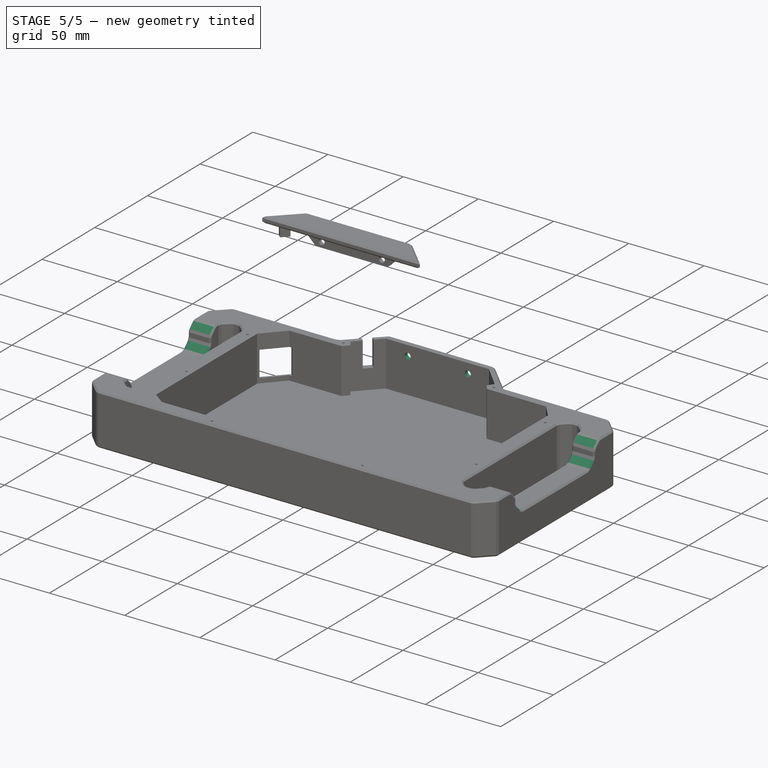
[diagram: stage 5 of 5 — iso view after this stage's code; geometry added in this stage tinted green]
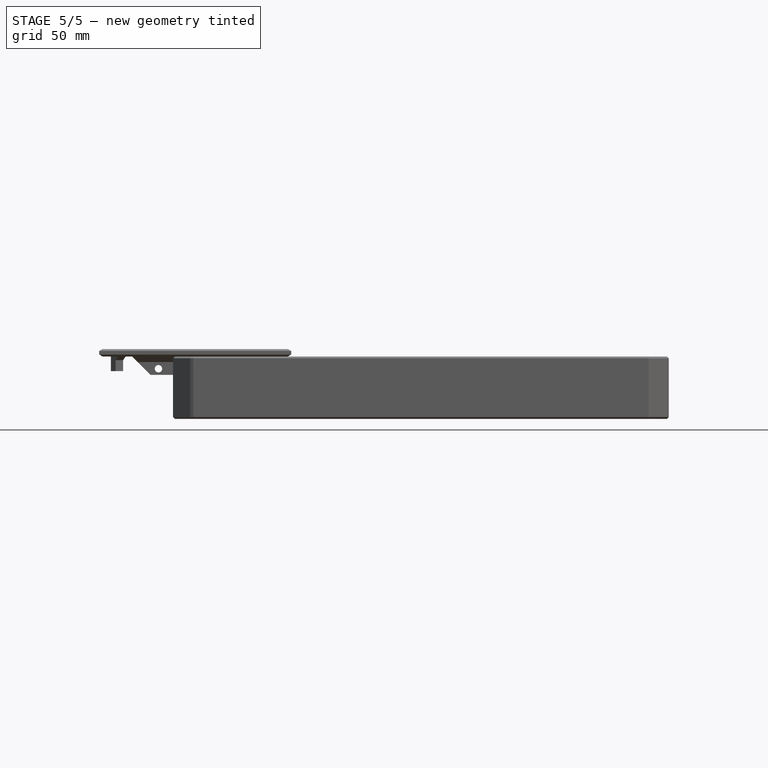
[diagram: stage 5 of 5 — front view after this stage's code; geometry added in this stage tinted green]
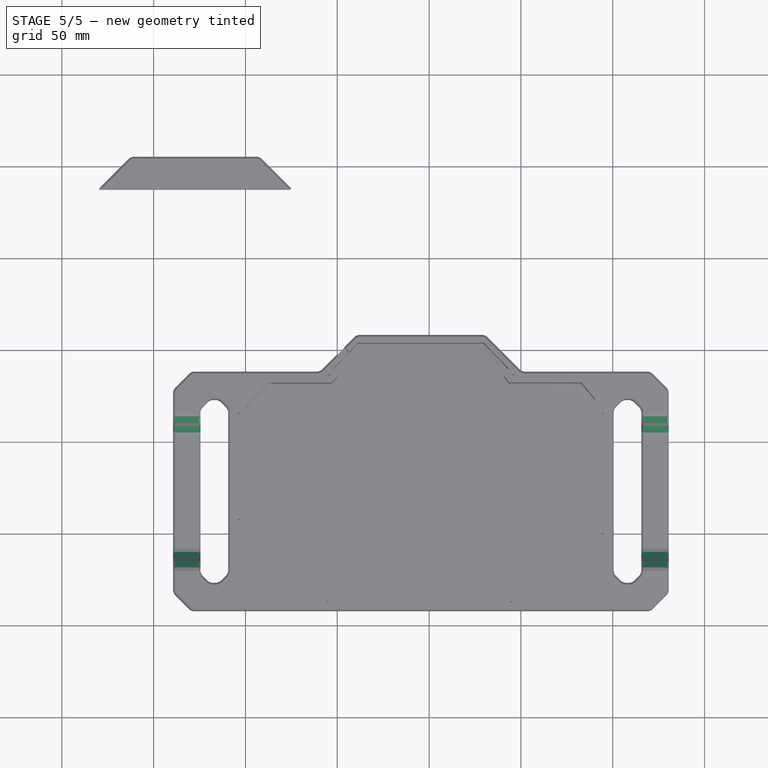
[diagram: stage 5 of 5 — top view after this stage's code; geometry added in this stage tinted green]
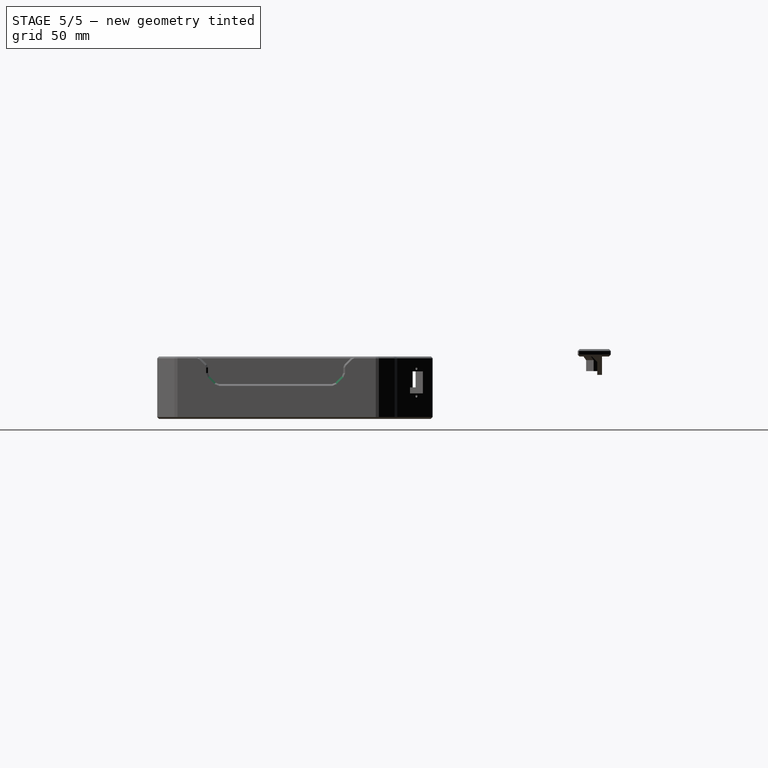
[diagram: stage 5 of 5 — right view after this stage's code; geometry added in this stage tinted green]
FEATURE [PartDesign::Chamfer] Chamfer
  Angle = 45
  Base = -> Pocket006 [Edge46,Edge110,Edge107,Edge56,Edge61,Edge157,Edge71,Edge158]
  BaseFeature = -> Pocket006
  ChamferType = 0
  FlipDirection = false
  Size = 5
  Size2 = 1
  SupportTransform = false
FEATURE [Sketcher::SketchObject] Sketch014
  FullyConstrained = false
  MapMode = 5
  Placement = pos=(0,170,3.77e-14) rot=(1,0,0;1.5708rad)
  Support = -> [DatumPlane004]
  sketch-geometry (2):
    g0: Circle CenterX=125.633 CenterY=27.3341 CenterZ=0 NormalX=0 NormalY=0 NormalZ=1 AngleXU=0 Radius=2
    g1: Circle CenterX=165.633 CenterY=27.3341 CenterZ=0 NormalX=0 NormalY=0 NormalZ=1 AngleXU=0 Radius=2
  constraints (4):
    c: DistanceY(g1,g0) = 0
    c: DistanceX(g0,g1) = 40
    c: Diameter(g1) = 4
    c: Diameter(g0) = 4
FEATURE [PartDesign::Pocket] Pocket008
  BaseFeature = -> Chamfer
  Length = 50
  Length2 = 100
  Profile = -> Sketch014
  Reversed = true
  Type = 0
FEATURE [PartDesign::Chamfer] Chamfer003
  Angle = 45
  Base = -> Pocket008 [Edge216,Edge215]
  BaseFeature = -> Pocket008
  ChamferType = 0
  FlipDirection = false
  Size = 1.5
  Size2 = 1
  SupportTransform = false
FEATURE [PartDesign::Chamfer] Chamfer005
  Angle = 45
  Base = -> Chamfer003 [Face15,Face14,Face13,Face77,Face37,Face35,Face32,Face31,Face33,Face79,Face36,Face38,Face34,Face75,Face76,Face46,Face22,Face12,Edge2,Face4,Edge5,Face19,Face18,Face17,Face82,Face23,Face80,Face81,Face53,Face29,Face27,Face25,Face83,Face16,Face24,Face58,Face84,Face26,Face28,Face30,+6 more]
  BaseFeature = -> Chamfer003
  ChamferType = 0
  FlipDirection = false
  Size = 1
  Size2 = 1
  SupportTransform = false
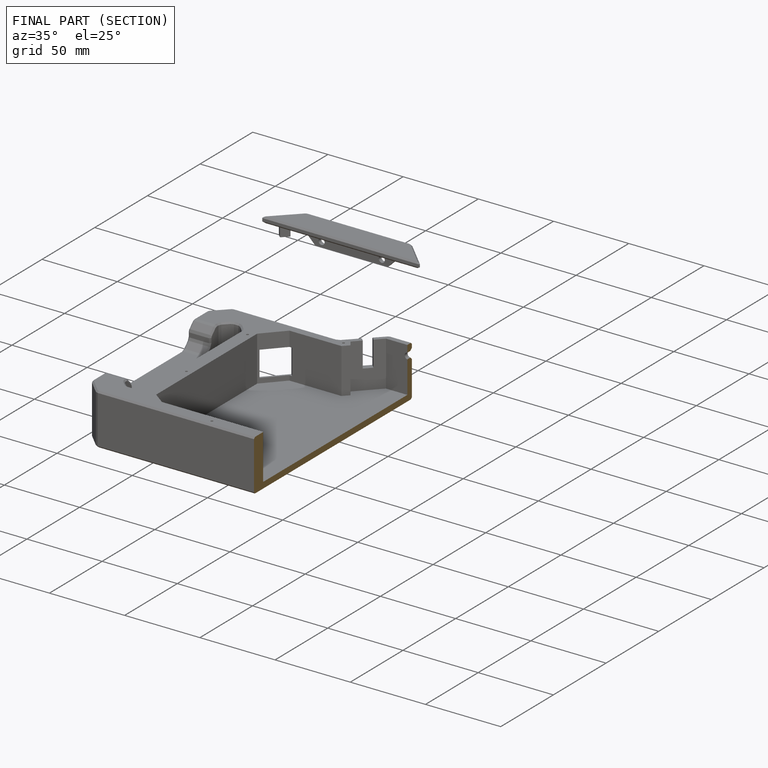
[diagram: finished part — half-section view (interior)]
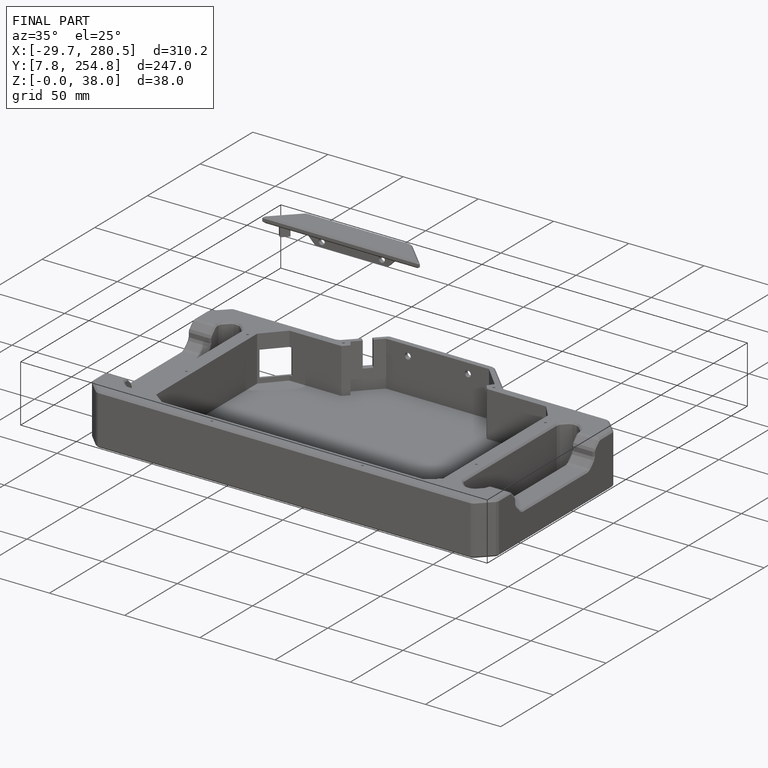
[diagram: finished part — iso view with bounding-box wireframe]
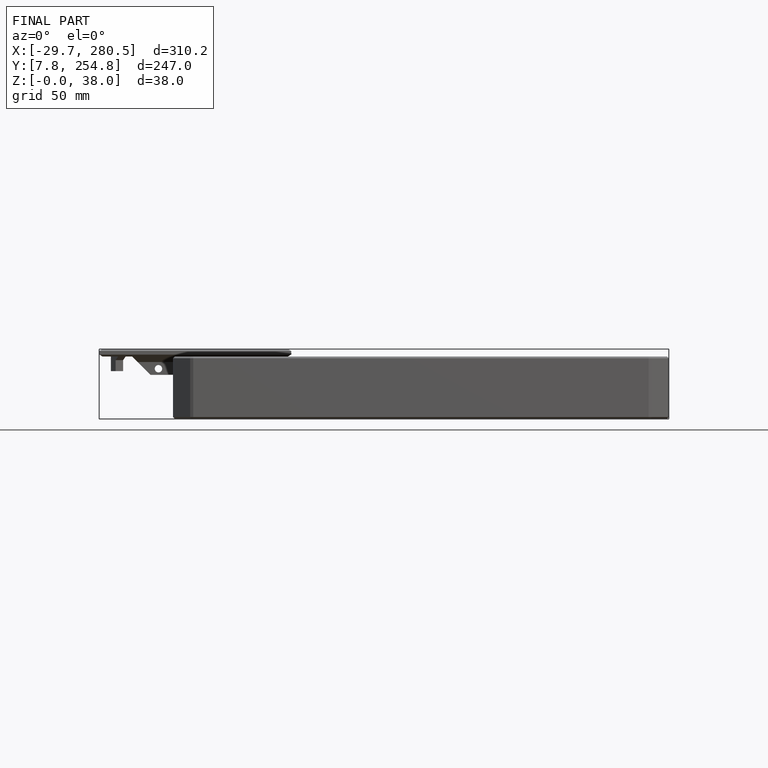
[diagram: finished part — front view with bounding-box wireframe]
